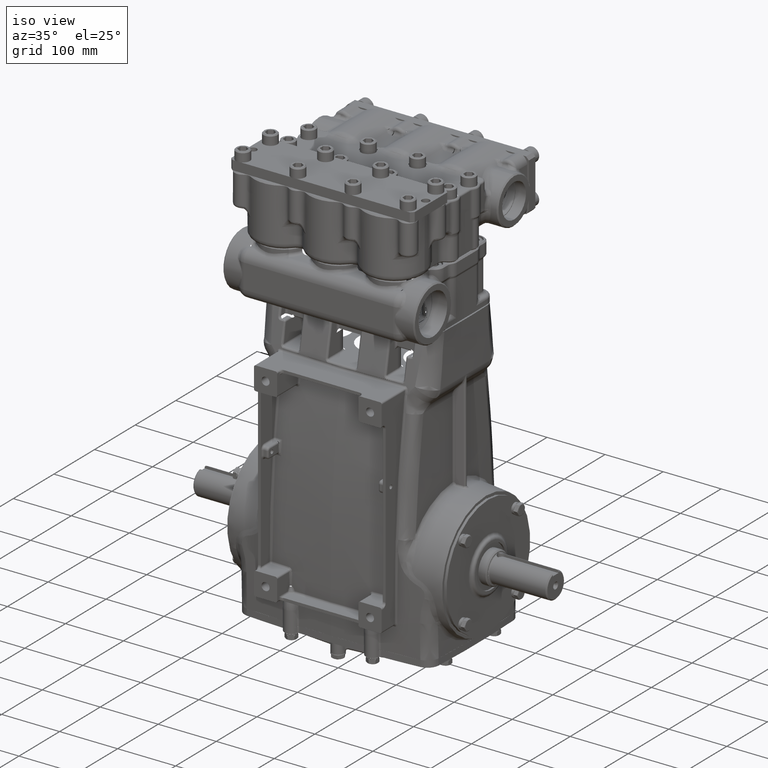
[diagram: clean part render]
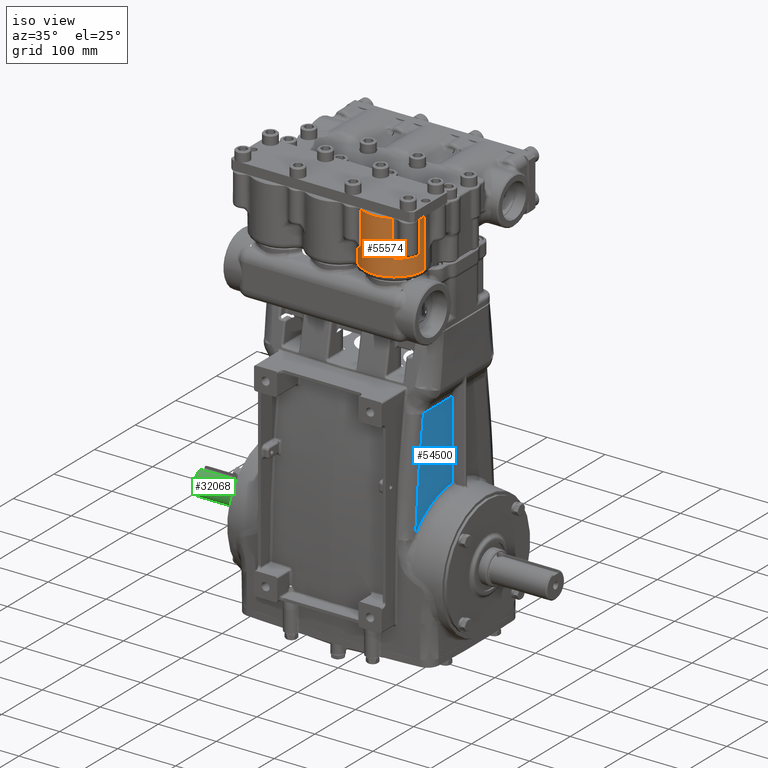
[diagram: same view with three faces highlighted in distinct colors, each labeled with its STEP entity id]
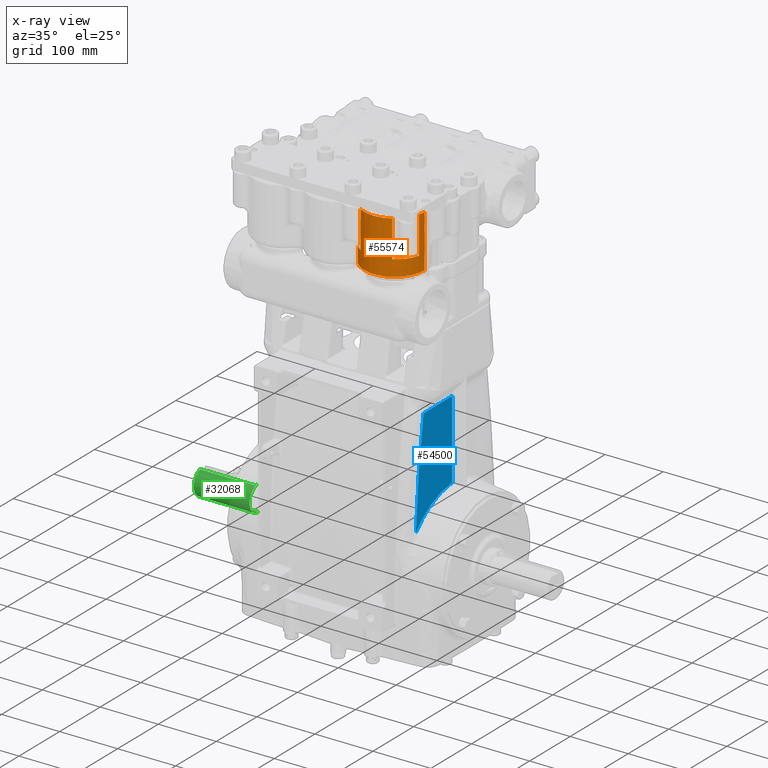
[diagram: x-ray of the same camera — body ghosted, the three highlighted faces saturated]
A machine part, iso view with three faces highlighted in distinct colors.
The next image is the same camera in x-ray (body ghosted, the three faces saturated) — at least one of them is partly hidden behind the body in this view.
Their STEP definitions:

[orange] entity #55574 — the highlighted cylindrical surface (partial cylindrical patch) has radius 52 mm, axis along (0, -0, -1).
#4437 = VECTOR ( 'NONE', #101730, 39.37007874015748143 ) ;
#12368 = LINE ( 'NONE', #116647, #15143 ) ;
#13224 = CARTESIAN_POINT ( 'NONE',  ( 2.665508038848281469, -5.561406449931422635, 22.71653543307087020 ) ) ;
#13717 = CARTESIAN_POINT ( 'NONE',  ( 3.740157480314959759, -3.818897637795275912, 20.19685039370078883 ) ) ;
#15143 = VECTOR ( 'NONE', #28835, 39.37007874015748143 ) ;
#15175 = CARTESIAN_POINT ( 'NONE',  ( 5.736109274929500401, -4.274292868327791872, 22.51968503937007782 ) ) ;
#17744 = ORIENTED_EDGE ( 'NONE', *, *, #22095, .F. ) ;
#17772 = CARTESIAN_POINT ( 'NONE',  ( 2.171704343408685123, -5.134634366683556550, 20.19685039370078883 ) ) ;
#22095 = EDGE_CURVE ( 'NONE', #22661, #33893, #12368, .T. ) ;
#22414 = CIRCLE ( 'NONE', #111224, 2.047244094488189337 ) ;
#22661 = VERTEX_POINT ( 'NONE', #123984 ) ;
#22840 = CARTESIAN_POINT ( 'NONE',  ( 2.171704343408685123, -5.134634366683556550, 22.51968503937007782 ) ) ;
#23571 = CARTESIAN_POINT ( 'NONE',  ( 5.736109274929500401, -4.274292868327791872, 20.19685039370078883 ) ) ;
#24827 = ORIENTED_EDGE ( 'NONE', *, *, #45322, .F. ) ;
#25368 = AXIS2_PLACEMENT_3D ( 'NONE', #104303, #46160, #121394 ) ;
#25657 = EDGE_CURVE ( 'NONE', #27895, #83798, #106132, .T. ) ;
#25803 = VECTOR ( 'NONE', #29679, 39.37007874015748143 ) ;
#27895 = VERTEX_POINT ( 'NONE', #87937 ) ;
#28835 = DIRECTION ( 'NONE',  ( 0.000000000000000000, -0.000000000000000000, -1.000000000000000000 ) ) ;
#29679 = DIRECTION ( 'NONE',  ( 0.000000000000000000, -0.000000000000000000, -1.000000000000000000 ) ) ;
#31923 = AXIS2_PLACEMENT_3D ( 'NONE', #76477, #87846, #86586 ) ;
#32319 = ORIENTED_EDGE ( 'NONE', *, *, #72149, .F. ) ;
#33635 = VERTEX_POINT ( 'NONE', #23571 ) ;
#33775 = ORIENTED_EDGE ( 'NONE', *, *, #25657, .F. ) ;
#33893 = VERTEX_POINT ( 'NONE', #93461 ) ;
#34733 = CARTESIAN_POINT ( 'NONE',  ( 2.665508038848281469, -5.561406449931422635, 20.19685039370078883 ) ) ;
#34763 = AXIS2_PLACEMENT_3D ( 'NONE', #118991, #61524, #42513 ) ;
#39884 = VERTEX_POINT ( 'NONE', #92642 ) ;
#42000 = CIRCLE ( 'NONE', #31923, 2.047244094488189337 ) ;
#42513 = DIRECTION ( 'NONE',  ( -1.000000000000000000, 6.138252299610239092E-15, 0.000000000000000000 ) ) ;
#42587 = VERTEX_POINT ( 'NONE', #34733 ) ;
#44289 = CYLINDRICAL_SURFACE ( 'NONE', #25368, 2.047244094488188448 ) ;
#44819 = LINE ( 'NONE', #15175, #4437 ) ;
#45322 = EDGE_CURVE ( 'NONE', #33635, #70682, #44819, .T. ) ;
#46160 = DIRECTION ( 'NONE',  ( 0.000000000000000000, -0.000000000000000000, -1.000000000000000000 ) ) ;
#46657 = CARTESIAN_POINT ( 'NONE',  ( 5.736109274929500401, -4.274292868327791872, 22.71653543307087020 ) ) ;
#46951 = CARTESIAN_POINT ( 'NONE',  ( 5.787401574803148208, -3.818897637795275912, 19.13385826771653697 ) ) ;
#50168 = VERTEX_POINT ( 'NONE', #13224 ) ;
#51759 = CARTESIAN_POINT ( 'NONE',  ( 2.665508038848281469, -5.561406449931422635, 22.51968503937007782 ) ) ;
#52369 = LINE ( 'NONE', #51759, #124432 ) ;
#53503 = DIRECTION ( 'NONE',  ( -1.000000000000000000, -8.006416042969878063E-16, 0.000000000000000000 ) ) ;
#53812 = FACE_OUTER_BOUND ( 'NONE', #118289, .T. ) ;
#55574 = ADVANCED_FACE ( 'NONE', ( #53812 ), #44289, .T. ) ;
#61524 = DIRECTION ( 'NONE',  ( 0.000000000000000000, 0.000000000000000000, 1.000000000000000000 ) ) ;
#70682 = VERTEX_POINT ( 'NONE', #46657 ) ;
#72149 = EDGE_CURVE ( 'NONE', #70682, #27895, #89265, .T. ) ;
#72599 = DIRECTION ( 'NONE',  ( -0.000000000000000000, -0.000000000000000000, -1.000000000000000000 ) ) ;
#74676 = DIRECTION ( 'NONE',  ( -1.000000000000000000, -1.868163743359637985E-15, 0.000000000000000000 ) ) ;
#76477 = CARTESIAN_POINT ( 'NONE',  ( 3.740157480314959759, -3.818897637795275912, 22.71653543307087020 ) ) ;
#76861 = CIRCLE ( 'NONE', #113198, 2.047244094488189337 ) ;
#78458 = AXIS2_PLACEMENT_3D ( 'NONE', #13717, #100888, #53503 ) ;
#79299 = EDGE_CURVE ( 'NONE', #42587, #50168, #52369, .T. ) ;
#80791 = ORIENTED_EDGE ( 'NONE', *, *, #79299, .F. ) ;
#81442 = DIRECTION ( 'NONE',  ( -0.000000000000000000, 0.000000000000000000, 1.000000000000000000 ) ) ;
#82923 = DIRECTION ( 'NONE',  ( 0.000000000000000000, 0.000000000000000000, 1.000000000000000000 ) ) ;
#83127 = ORIENTED_EDGE ( 'NONE', *, *, #95792, .F. ) ;
#83798 = VERTEX_POINT ( 'NONE', #46951 ) ;
#83945 = ORIENTED_EDGE ( 'NONE', *, *, #124997, .T. ) ;
#86586 = DIRECTION ( 'NONE',  ( -1.000000000000000000, 0.000000000000000000, 0.000000000000000000 ) ) ;
#87166 = CARTESIAN_POINT ( 'NONE',  ( 5.787401574803148208, -3.818897637795275912, 22.51968503937007782 ) ) ;
#87426 = VECTOR ( 'NONE', #104096, 39.37007874015748143 ) ;
#87846 = DIRECTION ( 'NONE',  ( 0.000000000000000000, 0.000000000000000000, 1.000000000000000000 ) ) ;
#87937 = CARTESIAN_POINT ( 'NONE',  ( 5.787401574803148208, -3.818897637795275912, 22.71653543307087020 ) ) ;
#89265 = CIRCLE ( 'NONE', #34763, 2.047244094488189337 ) ;
#90949 = DIRECTION ( 'NONE',  ( -1.000000000000000000, 0.000000000000000000, 0.000000000000000000 ) ) ;
#92642 = CARTESIAN_POINT ( 'NONE',  ( 2.171704343408685123, -5.134634366683556550, 19.13385826771653697 ) ) ;
#93461 = CARTESIAN_POINT ( 'NONE',  ( 4.814806921781637605, -5.561406449931421747, 20.19685039370078883 ) ) ;
#95792 = EDGE_CURVE ( 'NONE', #50168, #22661, #42000, .T. ) ;
#96538 = EDGE_CURVE ( 'NONE', #119725, #42587, #116776, .T. ) ;
#100888 = DIRECTION ( 'NONE',  ( 0.000000000000000000, 0.000000000000000000, 1.000000000000000000 ) ) ;
#101730 = DIRECTION ( 'NONE',  ( -0.000000000000000000, 0.000000000000000000, 1.000000000000000000 ) ) ;
#102900 = CARTESIAN_POINT ( 'NONE',  ( 3.740157480314959759, -3.818897637795275912, 19.13385826771653697 ) ) ;
#103469 = LINE ( 'NONE', #22840, #87426 ) ;
#104096 = DIRECTION ( 'NONE',  ( 0.000000000000000000, -0.000000000000000000, -1.000000000000000000 ) ) ;
#104303 = CARTESIAN_POINT ( 'NONE',  ( 3.740157480314959759, -3.818897637795275912, 22.51968503937007782 ) ) ;
#104984 = CARTESIAN_POINT ( 'NONE',  ( 3.740157480314959759, -3.818897637795275912, 20.19685039370078883 ) ) ;
#106132 = LINE ( 'NONE', #87166, #25803 ) ;
#111224 = AXIS2_PLACEMENT_3D ( 'NONE', #102900, #72599, #90949 ) ;
#113198 = AXIS2_PLACEMENT_3D ( 'NONE', #104984, #82923, #74676 ) ;
#116647 = CARTESIAN_POINT ( 'NONE',  ( 4.814806921781637605, -5.561406449931422635, 22.51968503937007782 ) ) ;
#116776 = CIRCLE ( 'NONE', #78458, 2.047244094488189337 ) ;
#118289 = EDGE_LOOP ( 'NONE', ( #33775, #32319, #24827, #124028, #17744, #83127, #80791, #122711, #83945, #123093 ) ) ;
#118991 = CARTESIAN_POINT ( 'NONE',  ( 3.740157480314959759, -3.818897637795275912, 22.71653543307087020 ) ) ;
#119725 = VERTEX_POINT ( 'NONE', #17772 ) ;
#119857 = EDGE_CURVE ( 'NONE', #83798, #39884, #22414, .T. ) ;
#121394 = DIRECTION ( 'NONE',  ( 1.000000000000000000, 0.000000000000000000, 0.000000000000000000 ) ) ;
#121697 = EDGE_CURVE ( 'NONE', #33893, #33635, #76861, .T. ) ;
#122711 = ORIENTED_EDGE ( 'NONE', *, *, #96538, .F. ) ;
#123093 = ORIENTED_EDGE ( 'NONE', *, *, #119857, .F. ) ;
#123984 = CARTESIAN_POINT ( 'NONE',  ( 4.814806921781637605, -5.561406449931422635, 22.71653543307087020 ) ) ;
#124028 = ORIENTED_EDGE ( 'NONE', *, *, #121697, .F. ) ;
#124432 = VECTOR ( 'NONE', #81442, 39.37007874015748143 ) ;
#124997 = EDGE_CURVE ( 'NONE', #119725, #39884, #103469, .T. ) ;

[blue] entity #54500 — the highlighted cylindrical surface (partial cylindrical patch) has radius 1800 mm, axis along (0, -0, -1).
#1487 = CARTESIAN_POINT ( 'NONE',  ( 5.195886994893236022, -0.3775754657366453548, 4.604309854300393745 ) ) ;
#3302 = B_SPLINE_CURVE_WITH_KNOTS ( 'NONE', 3,
 ( #76715, #19233, #105142, #29326 ),
 .UNSPECIFIED., .F., .F.,
 ( 4, 4 ),
 ( 0.04388005059409839925, 1.000000000000000000 ),
 .UNSPECIFIED. ) ;
#4212 = VERTEX_POINT ( 'NONE', #28222 ) ;
#7218 = CARTESIAN_POINT ( 'NONE',  ( 5.192414796677748967, -1.197802235764045875, 9.917109637932032484 ) ) ;
#11387 = ORIENTED_EDGE ( 'NONE', *, *, #34790, .F. ) ;
#11391 = VECTOR ( 'NONE', #26249, 39.37007874015748143 ) ;
#15846 = VERTEX_POINT ( 'NONE', #97232 ) ;
#16597 = DIRECTION ( 'NONE',  ( 0.000000000000000000, -0.000000000000000000, -1.000000000000000000 ) ) ;
#19233 = CARTESIAN_POINT ( 'NONE',  ( 5.107088388929756029, -3.568303785262160410, 5.144076632010992967 ) ) ;
#20468 = CARTESIAN_POINT ( 'NONE',  ( 5.193510871784008387, -0.7105679493191777718, 4.567609533988888693 ) ) ;
#22334 = CARTESIAN_POINT ( 'NONE',  ( 5.196215431379319405, -0.2999892675408380449, 4.609363232524455789 ) ) ;
#26249 = DIRECTION ( 'NONE',  ( 0.000000000000000000, -0.000000000000000000, -1.000000000000000000 ) ) ;
#26819 = CARTESIAN_POINT ( 'NONE',  ( 5.171554968579290090, -2.095380891642889321, 9.894907949546533743 ) ) ;
#28222 = CARTESIAN_POINT ( 'NONE',  ( 5.133643484345161490, -2.992401122897866639, 9.854557714864595752 ) ) ;
#29326 = CARTESIAN_POINT ( 'NONE',  ( 5.133643484345161490, -2.992401122897866639, 9.854557714864595752 ) ) ;
#30566 = CARTESIAN_POINT ( 'NONE',  ( 5.123644670809892609, -3.222657836148033805, 3.313063879081499241 ) ) ;
#32435 = CARTESIAN_POINT ( 'NONE',  ( 5.176136673584712078, -1.743008374184632503, 4.292391841633136806 ) ) ;
#34062 = EDGE_LOOP ( 'NONE', ( #63914, #83677, #11387, #74208 ) ) ;
#34790 = EDGE_CURVE ( 'NONE', #15846, #57659, #116383, .T. ) ;
#35747 = CARTESIAN_POINT ( 'NONE',  ( 5.196215436301595325, -0.2999892646748388847, 14.76377952755905376 ) ) ;
#44609 = EDGE_CURVE ( 'NONE', #57659, #4212, #3302, .T. ) ;
#50131 = CARTESIAN_POINT ( 'NONE',  ( 5.140840164773594623, -2.820268140170203885, 3.661820572477862523 ) ) ;
#54500 = ADVANCED_FACE ( 'NONE', ( #104402 ), #113911, .T. ) ;
#55044 = EDGE_CURVE ( 'NONE', #92174, #15846, #112196, .T. ) ;
#57659 = VERTEX_POINT ( 'NONE', #108711 ) ;
#60882 = CARTESIAN_POINT ( 'NONE',  ( 5.162140174222724198, -2.223517476149979633, 4.052318973225745857 ) ) ;
#62700 = CARTESIAN_POINT ( 'NONE',  ( 5.196215436301595325, -0.2999892646748456015, 9.921154763145716871 ) ) ;
#63914 = ORIENTED_EDGE ( 'NONE', *, *, #117573, .F. ) ;
#65246 = DIRECTION ( 'NONE',  ( 1.000000000000000000, 0.000000000000000000, 0.000000000000000000 ) ) ;
#69106 = CARTESIAN_POINT ( 'NONE',  ( 5.157034523067820508, -2.379877170464181013, 3.962408877108611005 ) ) ;
#69737 = CARTESIAN_POINT ( 'NONE',  ( 5.106144288734116188, -3.585958197652240997, 2.915559926701403626 ) ) ;
#70968 = CARTESIAN_POINT ( 'NONE',  ( 5.146399346574610512, -2.677723509125692569, 3.767407280552228954 ) ) ;
#73540 =( BOUNDED_CURVE ( )  B_SPLINE_CURVE ( 3, ( #73580, #26819, #7218, #103894 ),
 .UNSPECIFIED., .F., .F. ) 
 B_SPLINE_CURVE_WITH_KNOTS ( ( 4, 4 ),
 ( 3.099353990276439319, 3.137359459100741876 ),
 .UNSPECIFIED. ) 
 CURVE ( )  GEOMETRIC_REPRESENTATION_ITEM ( )  RATIONAL_B_SPLINE_CURVE ( ( 1.000000000000000000, 0.9998796356503556471, 0.9998796356503556471, 1.000000000000000000 ) ) 
 REPRESENTATION_ITEM ( '' )  );
#73580 = CARTESIAN_POINT ( 'NONE',  ( 5.133643484345161490, -2.992401122897866639, 9.854557714864595752 ) ) ;
#74101 = CARTESIAN_POINT ( 'NONE',  ( -65.66929133858268131, 0.000000000000000000, 14.76377952755905376 ) ) ;
#74208 = ORIENTED_EDGE ( 'NONE', *, *, #55044, .F. ) ;
#76715 = CARTESIAN_POINT ( 'NONE',  ( 5.100595819511899442, -3.692304923845031173, 2.773909705513609048 ) ) ;
#77971 = CARTESIAN_POINT ( 'NONE',  ( 5.111975927464273539, -3.469512439994389297, 3.053412197824424634 ) ) ;
#83677 = ORIENTED_EDGE ( 'NONE', *, *, #44609, .F. ) ;
#88696 = CARTESIAN_POINT ( 'NONE',  ( 5.100595819511899442, -3.692304923845031173, 2.773909705513609048 ) ) ;
#89314 = CARTESIAN_POINT ( 'NONE',  ( 5.191491338359638164, -0.8886169035916972048, 4.536289653438936753 ) ) ;
#92174 = VERTEX_POINT ( 'NONE', #62700 ) ;
#97232 = CARTESIAN_POINT ( 'NONE',  ( 5.196215431379319405, -0.2999892675408380449, 4.609363232524455789 ) ) ;
#103894 = CARTESIAN_POINT ( 'NONE',  ( 5.196215436301595325, -0.2999892646748456015, 9.921154763145716871 ) ) ;
#104112 = AXIS2_PLACEMENT_3D ( 'NONE', #74101, #16597, #65246 ) ;
#104402 = FACE_OUTER_BOUND ( 'NONE', #34062, .T. ) ;
#105142 = CARTESIAN_POINT ( 'NONE',  ( 5.119199287609216498, -3.334163967536989404, 7.510175110818019029 ) ) ;
#107643 = CARTESIAN_POINT ( 'NONE',  ( 5.129463079289632965, -3.092734838758832261, 3.434648272710008499 ) ) ;
#108711 = CARTESIAN_POINT ( 'NONE',  ( 5.100595819511899442, -3.692304923845031173, 2.773909705513609048 ) ) ;
#109510 = CARTESIAN_POINT ( 'NONE',  ( 5.195431044183541403, -0.4551832489085756994, 4.597283411084529980 ) ) ;
#112196 = LINE ( 'NONE', #35747, #11391 ) ;
#113911 = CYLINDRICAL_SURFACE ( 'NONE', #104112, 70.86614173228348079 ) ;
#116383 = B_SPLINE_CURVE_WITH_KNOTS ( 'NONE', 3,
 ( #22334, #1487, #109510, #20468, #89314, #118365, #32435, #60882, #69106, #70968, #50131, #107643, #30566, #77971, #69737, #88696 ),
 .UNSPECIFIED., .F., .F.,
 ( 4, 2, 2, 2, 2, 2, 2, 4 ),
 ( 0.5352062955114755827, 0.5624996988594734848, 0.6249997418795486537, 0.7499998279196991025, 0.8124998709397743824, 0.8749999139598496622, 0.9374999569799249421, 1.000000000000000000 ),
 .UNSPECIFIED. ) ;
#117573 = EDGE_CURVE ( 'NONE', #4212, #92174, #73540, .T. ) ;
#118365 = CARTESIAN_POINT ( 'NONE',  ( 5.183688100749852978, -1.409190856497124056, 4.413215318397420539 ) ) ;

[green] entity #32068 — the highlighted cylindrical surface (edge-blend (fillet) strip) has radius 22.5 mm, axis along (1, -0, -0).
#499 = CYLINDRICAL_SURFACE ( 'NONE', #36725, 0.8858267716535433989 ) ;
#4009 = ORIENTED_EDGE ( 'NONE', *, *, #112314, .T. ) ;
#5271 = VERTEX_POINT ( 'NONE', #36750 ) ;
#6348 = EDGE_LOOP ( 'NONE', ( #15648, #53138, #63338, #68081, #4009 ) ) ;
#6405 = EDGE_CURVE ( 'NONE', #124888, #5271, #75413, .T. ) ;
#6646 = CARTESIAN_POINT ( 'NONE',  ( -8.273768425878982313, -0.2659900968066949423, 0.8449534911186555863 ) ) ;
#9190 = CARTESIAN_POINT ( 'NONE',  ( -8.346456692913385211, -0.2755905511811023167, 0.8418663299347676210 ) ) ;
#11663 = EDGE_CURVE ( 'NONE', #96828, #124888, #117935, .T. ) ;
#11852 = CARTESIAN_POINT ( 'NONE',  ( -12.00787401574803148, 0.000000000000000000, 0.000000000000000000 ) ) ;
#15648 = ORIENTED_EDGE ( 'NONE', *, *, #41336, .T. ) ;
#17423 = CARTESIAN_POINT ( 'NONE',  ( -8.149606299212603489, -0.1928732080931684356, 0.8645744588975481371 ) ) ;
#20850 = VERTEX_POINT ( 'NONE', #9190 ) ;
#20954 = AXIS2_PLACEMENT_3D ( 'NONE', #122578, #73918, #25903 ) ;
#21295 = DIRECTION ( 'NONE',  ( 1.000000000000000000, -0.000000000000000000, -0.000000000000000000 ) ) ;
#25903 = DIRECTION ( 'NONE',  ( 0.000000000000000000, 0.000000000000000000, -1.000000000000000000 ) ) ;
#27525 = CARTESIAN_POINT ( 'NONE',  ( -8.282784261081184596, -0.2682925596649305966, 0.8442226319676584545 ) ) ;
#30053 = CARTESIAN_POINT ( 'NONE',  ( -11.92913385826771488, -0.2755905511811023723, 0.8418663299347676210 ) ) ;
#32068 = ADVANCED_FACE ( 'NONE', ( #69365 ), #499, .T. ) ;
#32327 = VERTEX_POINT ( 'NONE', #30053 ) ;
#35119 = CARTESIAN_POINT ( 'NONE',  ( -8.346456692913385211, -0.2755905511811023167, 0.8418663299347676210 ) ) ;
#35619 = AXIS2_PLACEMENT_3D ( 'NONE', #54599, #84907, #82421 ) ;
#35865 = LINE ( 'NONE', #64905, #117201 ) ;
#36725 = AXIS2_PLACEMENT_3D ( 'NONE', #11852, #39052, #88950 ) ;
#36750 = CARTESIAN_POINT ( 'NONE',  ( -8.149606299212603489, -0.1928732080931684356, 0.8645744588975481371 ) ) ;
#39052 = DIRECTION ( 'NONE',  ( 1.000000000000000000, -0.000000000000000000, -0.000000000000000000 ) ) ;
#41336 = EDGE_CURVE ( 'NONE', #32327, #96828, #74021, .T. ) ;
#43434 = B_SPLINE_CURVE_WITH_KNOTS ( 'NONE', 3,
 ( #17423, #121675, #76160, #65423, #114088, #103960, #54688, #6646, #27525, #55959, #74268, #35119 ),
 .UNSPECIFIED., .F., .F.,
 ( 4, 2, 2, 2, 2, 4 ),
 ( 0.005430606697455180563, 0.006826616170667087861, 0.008222625643878996027, 0.008920630380484911512, 0.009618635117090826997, 0.01101464459030265970 ),
 .UNSPECIFIED. ) ;
#50017 = CARTESIAN_POINT ( 'NONE',  ( -8.149606299212598159, 0.000000000000000000, -0.8858267716535433989 ) ) ;
#53138 = ORIENTED_EDGE ( 'NONE', *, *, #11663, .T. ) ;
#54599 = CARTESIAN_POINT ( 'NONE',  ( -11.92913385826771488, 0.000000000000000000, 0.000000000000000000 ) ) ;
#54688 = CARTESIAN_POINT ( 'NONE',  ( -8.256239951148126366, -0.2605671799535790867, 0.8466415289152062762 ) ) ;
#55959 = CARTESIAN_POINT ( 'NONE',  ( -8.309881745342988069, -0.2737738521065506969, 0.8424676073061592163 ) ) ;
#59164 = VECTOR ( 'NONE', #21295, 39.37007874015748143 ) ;
#63338 = ORIENTED_EDGE ( 'NONE', *, *, #6405, .T. ) ;
#64905 = CARTESIAN_POINT ( 'NONE',  ( -12.00787401574803148, -0.2755905511811023723, 0.8418663299347676210 ) ) ;
#65423 = CARTESIAN_POINT ( 'NONE',  ( -8.206483361284140798, -0.2381046691244285696, 0.8532932138974982372 ) ) ;
#68081 = ORIENTED_EDGE ( 'NONE', *, *, #86380, .T. ) ;
#69365 = FACE_OUTER_BOUND ( 'NONE', #6348, .T. ) ;
#72300 = CARTESIAN_POINT ( 'NONE',  ( -11.92913385826771488, 0.000000000000000000, -0.8858267716535433989 ) ) ;
#73918 = DIRECTION ( 'NONE',  ( -1.000000000000000000, -0.000000000000000000, -0.000000000000000000 ) ) ;
#74021 = CIRCLE ( 'NONE', #35619, 0.8858267716535433989 ) ;
#74268 = CARTESIAN_POINT ( 'NONE',  ( -8.328095311202419637, -0.2755905511811020947, 0.8418663299347675100 ) ) ;
#75413 = CIRCLE ( 'NONE', #20954, 0.8858267716535433989 ) ;
#76160 = CARTESIAN_POINT ( 'NONE',  ( -8.176172643793153227, -0.2174619728629873794, 0.8587860226511100370 ) ) ;
#82421 = DIRECTION ( 'NONE',  ( 0.000000000000000000, 0.000000000000000000, 1.000000000000000000 ) ) ;
#84907 = DIRECTION ( 'NONE',  ( 1.000000000000000000, 0.000000000000000000, 0.000000000000000000 ) ) ;
#86380 = EDGE_CURVE ( 'NONE', #5271, #20850, #43434, .T. ) ;
#88950 = DIRECTION ( 'NONE',  ( 0.000000000000000000, 0.000000000000000000, -1.000000000000000000 ) ) ;
#95378 = CARTESIAN_POINT ( 'NONE',  ( -12.00787401574803148, 0.000000000000000000, -0.8858267716535433989 ) ) ;
#96828 = VERTEX_POINT ( 'NONE', #72300 ) ;
#103960 = CARTESIAN_POINT ( 'NONE',  ( -8.247673071881232332, -0.2574385571765950842, 0.8476013659305283721 ) ) ;
#112314 = EDGE_CURVE ( 'NONE', #20850, #32327, #35865, .T. ) ;
#114088 = CARTESIAN_POINT ( 'NONE',  ( -8.222543806565662194, -0.2468327346962480018, 0.8507744342314309538 ) ) ;
#117201 = VECTOR ( 'NONE', #124317, 39.37007874015748143 ) ;
#117935 = LINE ( 'NONE', #95378, #59164 ) ;
#121675 = CARTESIAN_POINT ( 'NONE',  ( -8.162286858031546188, -0.2058152492430677938, 0.8616872894118363657 ) ) ;
#122578 = CARTESIAN_POINT ( 'NONE',  ( -8.149606299212598159, 0.000000000000000000, 0.000000000000000000 ) ) ;
#124317 = DIRECTION ( 'NONE',  ( -1.000000000000000000, 0.000000000000000000, 0.000000000000000000 ) ) ;
#124888 = VERTEX_POINT ( 'NONE', #50017 ) ;